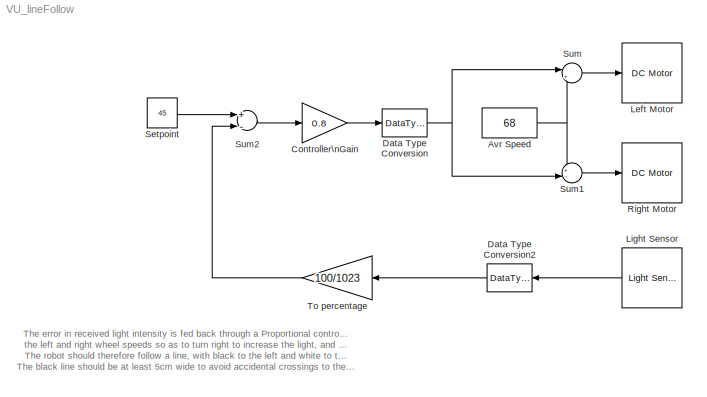
MODEL VU_lineFollow
KIND model
BLOCK [Constant] Avr Speed
  OutDataTypeStr = int8
  SID = 27
  Value = 68
BLOCK [Gain] Controller\nGain
  Gain = 0.8
  OutDataTypeStr = Inherit: Inherit via internal rule
  ParamDataTypeStr = Inherit: Inherit via internal rule
  SID = 34
  SaturateOnIntegerOverflow = off
BLOCK [DataTypeConversion] Data Type Conversion
  OutDataTypeStr = int8
  RndMeth = Floor
  SID = 1
BLOCK [DataTypeConversion] Data Type Conversion2
  OutDataTypeStr = double
  RndMeth = Floor
  SID = 31
BLOCK [Reference] Left Motor  REF=lego_nxt_lib/DC Motor  (lib defined in mdl_3d9a4c0387f8)
  Ports = [1]
  SID = 25
  SourceBlock = lego_nxt_lib/DC Motor
  SourceType = Servo Motor (Simple)
  brake = Coast
  port = Port C
BLOCK [Reference] Light Sensor  REF=lego_nxt_lib/Light Sensor  (lib defined in mdl_3d9a4c0387f8)
  Ports = [0, 1]
  SID = 26
  SourceBlock = lego_nxt_lib/Light Sensor
  SourceType = Light Sensor
  port = Port 3
  st = -1
BLOCK [Reference] Right Motor  REF=lego_nxt_lib/DC Motor  (lib defined in mdl_3d9a4c0387f8)
  Ports = [1]
  SID = 30
  SourceBlock = lego_nxt_lib/DC Motor
  SourceType = Servo Motor (Simple)
  brake = Coast
  port = Port B
BLOCK [Constant] Setpoint
  SID = 13
  Value = 45
BLOCK [Sum] Sum
  IconShape = round
  InputSameDT = off
  Inputs = |++
  OutDataTypeStr = Inherit: Inherit via internal rule
  Ports = [2, 1]
  SID = 28
  SaturateOnIntegerOverflow = off
BLOCK [Sum] Sum1
  IconShape = round
  InputSameDT = off
  Inputs = +-|
  OutDataTypeStr = Inherit: Inherit via internal rule
  Ports = [2, 1]
  SID = 29
  SaturateOnIntegerOverflow = off
BLOCK [Sum] Sum2
  InputSameDT = off
  Inputs = +-
  OutDataTypeStr = Inherit: Inherit via internal rule
  Ports = [2, 1]
  SID = 33
  SaturateOnIntegerOverflow = off
BLOCK [Gain] To percentage
  Gain = 100/1023
  OutDataTypeStr = Inherit: Inherit via internal rule
  ParamDataTypeStr = Inherit: Inherit via internal rule
  SID = 32
  SaturateOnIntegerOverflow = off
ANNOTATION (root): The error in received light intensity is fed back through a Proportional controller in order to adjust \nthe left and right wheel speeds so as to turn right to increase the light, and left to decrease it. \nThe robot should therefore follow a line, with black to the left and white to the right.\nThe black line should be at least 5cm wide to avoid accidental crossings to the right hand edge!
NET Avr Speed:1 -> Sum1:1, Sum:2
LINE Controller\nGain:1 -> Data Type Conversion:1
LINE Data Type Conversion2:1 -> To percentage:1
NET Data Type Conversion:1 -> Sum1:2, Sum:1
LINE Light Sensor:1 -> Data Type Conversion2:1
LINE Setpoint:1 -> Sum2:1
LINE Sum1:1 -> Right Motor:1
LINE Sum2:1 -> Controller\nGain:1
LINE Sum:1 -> Left Motor:1
LINE To percentage:1 -> Sum2:2
note: NET lines group one-source signal fan-out (src -> all destinations, sorted); 1:1 wires keep LINE
